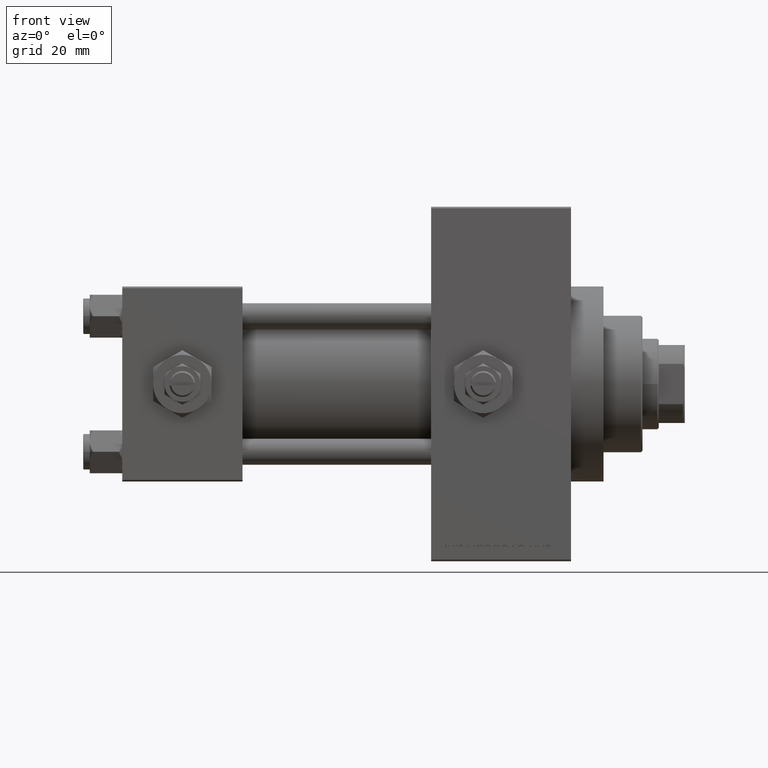
[diagram: clean part render]
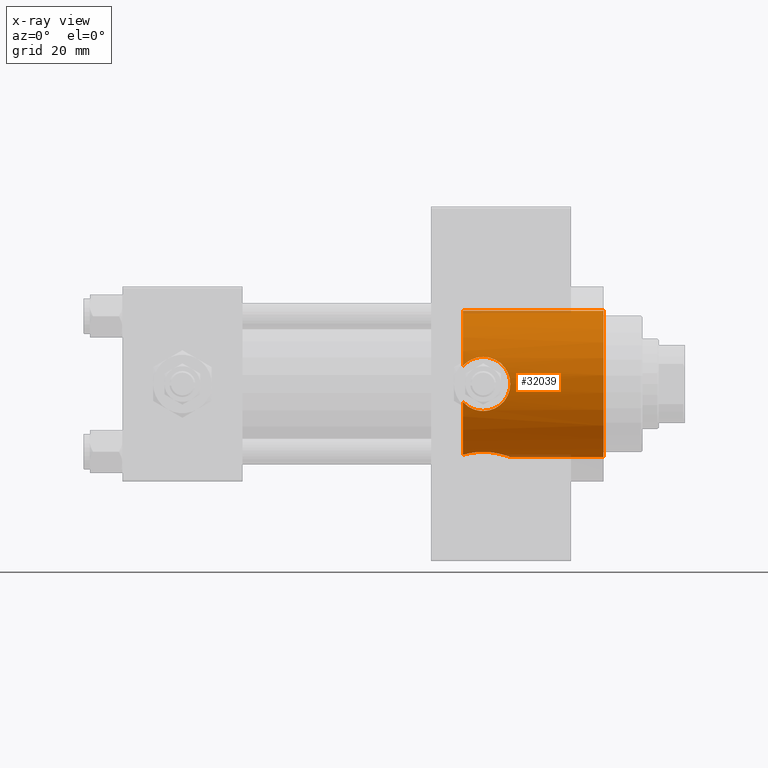
[diagram: x-ray — body ghosted, one internal face saturated and labeled with its STEP entity id]
A machine part, front view, then the same camera in x-ray: the body is ghosted and one INTERNAL B-rep face — a face not visible from any outside direction — is saturated and labeled: STEP entity #32039.
In plain terms, the highlighted cylindrical surface (partial cylindrical patch) has radius 22.5 mm, axis along (1, 0, 0).
Its self-contained STEP definition (entity closure, byte-faithful):
#111 = EDGE_CURVE ( 'NONE', #18398, #23371, #21580, .T. ) ;
#209 = EDGE_LOOP ( 'NONE', ( #24564, #38451, #2272, #45856, #39752, #19119, #42734, #12358, #44548 ) ) ;
#398 = CARTESIAN_POINT ( 'NONE',  ( 111.0000000000000000, -20.90122245228733533, 8.329999999999998295 ) ) ;
#600 = CARTESIAN_POINT ( 'NONE',  ( 116.7709310325000160, -6.021442665975470732, -21.68155238348414926 ) ) ;
#646 = CARTESIAN_POINT ( 'NONE',  ( 118.4672601230096518, -22.19473539390110872, 3.701775444982230212 ) ) ;
#724 = CARTESIAN_POINT ( 'NONE',  ( 148.0000000000000284, 0.000000000000000000, -22.50000000000000355 ) ) ;
#850 = CARTESIAN_POINT ( 'NONE',  ( 114.7487363894115333, -7.487015359358448308, -21.22021487626641090 ) ) ;
#892 = CARTESIAN_POINT ( 'NONE',  ( 115.4162946174782576, -21.36157403235598906, -7.068107254197743217 ) ) ;
#1366 = CARTESIAN_POINT ( 'NONE',  ( 108.6551550182247894, -21.03047559937812849, 7.998696374284292254 ) ) ;
#1617 = CARTESIAN_POINT ( 'NONE',  ( 106.2697604933278797, -21.42856317882727168, 6.862982220796683741 ) ) ;
#1655 = AXIS2_PLACEMENT_3D ( 'NONE', #32663, #6255, #48633 ) ;
#1827 = CARTESIAN_POINT ( 'NONE',  ( 106.2981393575764457, -6.888851288155064978, -21.42070446004186479 ) ) ;
#2272 = ORIENTED_EDGE ( 'NONE', *, *, #14583, .T. ) ;
#2426 = DIRECTION ( 'NONE',  ( 1.000000000000000000, -0.000000000000000000, -0.000000000000000000 ) ) ;
#2540 = CARTESIAN_POINT ( 'NONE',  ( 104.7400000000000233, 2.755455298081545172E-15, 22.50000000000000355 ) ) ;
#3236 = CARTESIAN_POINT ( 'NONE',  ( 118.7930968072331268, -22.30658703498862039, 2.954723655153349782 ) ) ;
#3490 = CARTESIAN_POINT ( 'NONE',  ( 106.5072799748208894, -21.37716939153678908, -7.020813959009431393 ) ) ;
#3725 = CARTESIAN_POINT ( 'NONE',  ( 109.5159917530595663, -20.95182994654723174, -8.202162177390789566 ) ) ;
#4142 = CARTESIAN_POINT ( 'NONE',  ( 116.0823739737877105, -21.50581369923292741, 6.621894569807064812 ) ) ;
#4337 = CARTESIAN_POINT ( 'NONE',  ( 118.0799258618782517, -4.408873422199381054, -22.06660649451128720 ) ) ;
#4376 = CARTESIAN_POINT ( 'NONE',  ( 112.0945140872407819, -20.92807357394550749, -8.262359610693520651 ) ) ;
#4456 = CARTESIAN_POINT ( 'NONE',  ( 104.7400000000000233, -21.81854028114621258, -5.495570943951164189 ) ) ;
#4662 = VERTEX_POINT ( 'NONE', #724 ) ;
#4873 = CARTESIAN_POINT ( 'NONE',  ( 119.1137670994563535, -22.42078891501157756, 1.905695455502133262 ) ) ;
#4896 = DIRECTION ( 'NONE',  ( 1.000000000000000000, 0.000000000000000000, 0.000000000000000000 ) ) ;
#4950 = CIRCLE ( 'NONE', #20852, 22.50000000000000355 ) ;
#5108 = CARTESIAN_POINT ( 'NONE',  ( 111.0000000000000000, -20.90122245228733533, 8.329999999999998295 ) ) ;
#5280 = VERTEX_POINT ( 'NONE', #10838 ) ;
#5340 = AXIS2_PLACEMENT_3D ( 'NONE', #19403, #26380, #45073 ) ;
#5640 = CARTESIAN_POINT ( 'NONE',  ( 111.0000000000000000, -20.90122245228733533, 8.329999999999998295 ) ) ;
#5873 = CARTESIAN_POINT ( 'NONE',  ( 104.7400000000000233, 0.000000000000000000, 0.000000000000000000 ) ) ;
#6255 = DIRECTION ( 'NONE',  ( 1.000000000000000000, 0.000000000000000000, 0.000000000000000000 ) ) ;
#6966 = CARTESIAN_POINT ( 'NONE',  ( 111.2735061075311336, -20.90122245228732467, -8.330000000000001847 ) ) ;
#7188 = FACE_OUTER_BOUND ( 'NONE', #209, .T. ) ;
#7462 = CARTESIAN_POINT ( 'NONE',  ( 106.2630478035203936, -21.43006822195327388, -6.858243691352287286 ) ) ;
#7871 = CARTESIAN_POINT ( 'NONE',  ( 117.6131820133793582, -21.92059695852139711, 5.094123725193837160 ) ) ;
#8075 = CARTESIAN_POINT ( 'NONE',  ( 119.2979863424998257, -0.8432915997222987237, -22.48808859033163188 ) ) ;
#8115 = CARTESIAN_POINT ( 'NONE',  ( 114.7029940750481956, -21.22539488743754177, -7.466680409794069107 ) ) ;
#8310 = CARTESIAN_POINT ( 'NONE',  ( 111.2794540716097629, -8.328024065339553417, -20.90201419577500985 ) ) ;
#8554 = CARTESIAN_POINT ( 'NONE',  ( 109.3814412075936531, -8.182171164303330357, -20.95982457214782357 ) ) ;
#8600 = CARTESIAN_POINT ( 'NONE',  ( 109.8116114218195634, -20.92703331906126962, 8.266041580867375060 ) ) ;
#8604 = CARTESIAN_POINT ( 'NONE',  ( 111.0000000000000000, -20.90122245228733533, -8.329999999999998295 ) ) ;
#8810 = CARTESIAN_POINT ( 'NONE',  ( 108.1560306839754588, -7.840697625789145420, -21.09036237300174932 ) ) ;
#8828 = DIRECTION ( 'NONE',  ( 0.000000000000000000, 0.000000000000000000, -1.000000000000000000 ) ) ;
#9053 = CARTESIAN_POINT ( 'NONE',  ( 107.3830852825355180, -7.515492575748676352, -21.20842510955139204 ) ) ;
#9334 = CARTESIAN_POINT ( 'NONE',  ( 105.1294213925113041, -21.70681062894638558, 5.939160507616724871 ) ) ;
#9835 = EDGE_CURVE ( 'NONE', #23371, #15144, #28577, .T. ) ;
#10705 = CARTESIAN_POINT ( 'NONE',  ( 119.0457606325067417, -22.39619972498787703, 2.174768506008420310 ) ) ;
#10838 = CARTESIAN_POINT ( 'NONE',  ( 104.7400000000000233, -21.81854028114621258, 5.495570943951165965 ) ) ;
#10950 = CARTESIAN_POINT ( 'NONE',  ( 113.1693074062155233, -21.01188926694717907, 8.047222581461220159 ) ) ;
#11154 = VERTEX_POINT ( 'NONE', #34791 ) ;
#11870 = CARTESIAN_POINT ( 'NONE',  ( 118.2086838033527272, -22.10908057845582775, -4.183043294148126812 ) ) ;
#12073 = CARTESIAN_POINT ( 'NONE',  ( 113.1626272159215887, -8.088971939222112439, -20.99812971082578272 ) ) ;
#12115 = CARTESIAN_POINT ( 'NONE',  ( 112.6405020106404749, -20.96042450051702133, 8.180473043859901594 ) ) ;
#12358 = ORIENTED_EDGE ( 'NONE', *, *, #9835, .T. ) ;
#13053 = CARTESIAN_POINT ( 'NONE',  ( 105.9550632640747949, -6.641689111475751695, -21.49922460944221569 ) ) ;
#13617 = EDGE_CURVE ( 'NONE', #35166, #4662, #21369, .T. ) ;
#13769 = EDGE_CURVE ( 'NONE', #15144, #5280, #33106, .T. ) ;
#14468 = CARTESIAN_POINT ( 'NONE',  ( 111.5543731579531226, -20.90679372045599038, 8.316058887085075568 ) ) ;
#14482 = CARTESIAN_POINT ( 'NONE',  ( 105.5599114470477247, -21.59276950757631397, -6.335268510715430956 ) ) ;
#14583 = EDGE_CURVE ( 'NONE', #11154, #4662, #45429, .T. ) ;
#14708 = CARTESIAN_POINT ( 'NONE',  ( 119.3299185521604642, -22.49996984620014828, 0.5500617071476525677 ) ) ;
#15082 = CARTESIAN_POINT ( 'NONE',  ( 116.4597915280917988, -6.305104980880364529, -21.60018777995134798 ) ) ;
#15144 = VERTEX_POINT ( 'NONE', #5640 ) ;
#15208 = CARTESIAN_POINT ( 'NONE',  ( 105.1302032349920808, -21.70658630899341901, -5.940051103694835355 ) ) ;
#15817 = CARTESIAN_POINT ( 'NONE',  ( 115.4717217021022293, -7.077548616542896909, -21.36464718587223643 ) ) ;
#16103 = CARTESIAN_POINT ( 'NONE',  ( 118.0675627765494795, -22.06333762759911821, 4.417272871008651514 ) ) ;
#16301 = CARTESIAN_POINT ( 'NONE',  ( 110.4273342078095936, -8.312974207010734418, -20.90801079915067362 ) ) ;
#16337 = CARTESIAN_POINT ( 'NONE',  ( 104.7400000000000233, -21.81854028114621258, 5.495570943951165965 ) ) ;
#16587 = CARTESIAN_POINT ( 'NONE',  ( 105.5602391363179038, -21.59259860989615021, 6.336013317517886101 ) ) ;
#16800 = CARTESIAN_POINT ( 'NONE',  ( 104.7400000000000233, -5.495570943951159748, -21.81854028114621258 ) ) ;
#17434 = B_SPLINE_CURVE_WITH_KNOTS ( 'NONE', 3,
 ( #31241, #42237, #8075, #38490, #23289, #49220, #27279, #26294, #4337, #19553, #46470, #600, #15082, #15817, #850, #12073, #42476, #8310, #19801, #34989, #16301, #35240, #8554, #31474, #8810, #9053, #42718, #1827, #13053, #46956, #24503, #16800 ),
 .UNSPECIFIED., .F., .F.,
 ( 4, 2, 2, 2, 2, 2, 2, 2, 2, 2, 2, 2, 2, 2, 2, 4 ),
 ( 0.02026158208243475714, 0.02152696880141127464, 0.02279235552038778867, 0.02405774223936430617, 0.02532312895834082367, 0.02658851567731734117, 0.02785390239629385520, 0.03038467583424691795, 0.03291544927219998418, 0.03354814263168822558, 0.03418083599117646698, 0.03544622271015295673, 0.03671160942912944647, 0.03797699614810593621, 0.03924238286708242596, 0.04050776958605891570 ),
 .UNSPECIFIED. ) ;
#17547 = VECTOR ( 'NONE', #2426, 1000.000000000000000 ) ;
#17934 = CARTESIAN_POINT ( 'NONE',  ( 111.0000000000000000, -20.90122245228733533, -8.329999999999998295 ) ) ;
#18398 = VERTEX_POINT ( 'NONE', #4456 ) ;
#18459 = CARTESIAN_POINT ( 'NONE',  ( 117.2760300427460152, -21.81999627700182742, -5.504278278704846983 ) ) ;
#18644 = CARTESIAN_POINT ( 'NONE',  ( 104.7400000000000233, -5.495570943951159748, -21.81854028114621258 ) ) ;
#18707 = CARTESIAN_POINT ( 'NONE',  ( 110.7033935767805133, -20.90122245228733178, -8.329999999999996518 ) ) ;
#19119 = ORIENTED_EDGE ( 'NONE', *, *, #43721, .F. ) ;
#19253 = AXIS2_PLACEMENT_3D ( 'NONE', #5873, #4896, #31793 ) ;
#19361 = CARTESIAN_POINT ( 'NONE',  ( 112.1003494092675652, -20.92838892255957717, 8.261561365096195431 ) ) ;
#19403 = CARTESIAN_POINT ( 'NONE',  ( 104.7400000000000233, 0.000000000000000000, 0.000000000000000000 ) ) ;
#19538 = EDGE_CURVE ( 'NONE', #23299, #5280, #31957, .T. ) ;
#19553 = CARTESIAN_POINT ( 'NONE',  ( 117.6031555897930758, -5.095277354536523973, -21.91828998158686304 ) ) ;
#19595 = CARTESIAN_POINT ( 'NONE',  ( 115.1841016531934514, -21.31459428776615894, -7.208104800680169788 ) ) ;
#19801 = CARTESIAN_POINT ( 'NONE',  ( 111.0645977083230065, -8.332469890991669459, -20.90023832775082724 ) ) ;
#20094 = CARTESIAN_POINT ( 'NONE',  ( 115.1856674176399906, -21.31171765456207368, 7.222201961450713803 ) ) ;
#20693 = CARTESIAN_POINT ( 'NONE',  ( 104.7400000000000233, 2.755455298081545172E-15, 22.50000000000000355 ) ) ;
#20852 = AXIS2_PLACEMENT_3D ( 'NONE', #34756, #43227, #8828 ) ;
#21369 = LINE ( 'NONE', #36572, #17547 ) ;
#21580 = B_SPLINE_CURVE_WITH_KNOTS ( 'NONE', 3,
 ( #37645, #15208, #14482, #7462, #3490, #45608, #33644, #30152, #30393, #3725, #48865, #26660, #18707, #33876 ),
 .UNSPECIFIED., .F., .F.,
 ( 4, 2, 2, 2, 2, 2, 4 ),
 ( 0.000000000000000000, 0.001781041944051188269, 0.002671562916076765815, 0.003562083888102343145, 0.005343125832153458772, 0.006233646804179016586, 0.007124167776204574400 ),
 .UNSPECIFIED. ) ;
#22184 = CARTESIAN_POINT ( 'NONE',  ( 112.3698902534410422, -20.94433763564107309, -8.221198477384685788 ) ) ;
#23084 = CARTESIAN_POINT ( 'NONE',  ( 118.2094365790032384, -22.10932566242729180, 4.181762714824277971 ) ) ;
#23127 = CYLINDRICAL_SURFACE ( 'NONE', #5340, 22.50000000000000355 ) ;
#23289 = CARTESIAN_POINT ( 'NONE',  ( 119.0725935047802437, -2.097577831626823652, -22.40566635581345167 ) ) ;
#23299 = VERTEX_POINT ( 'NONE', #20693 ) ;
#23371 = VERTEX_POINT ( 'NONE', #17934 ) ;
#23814 = CARTESIAN_POINT ( 'NONE',  ( 107.0214695962671385, -21.27506732941325041, 7.324357775039856300 ) ) ;
#23818 = CARTESIAN_POINT ( 'NONE',  ( 119.2744378885957843, -22.47926508187072514, -1.105184406068005609 ) ) ;
#24503 = CARTESIAN_POINT ( 'NONE',  ( 105.0173696454154140, -5.811522461638596759, -21.73895961452385350 ) ) ;
#24548 = CARTESIAN_POINT ( 'NONE',  ( 107.2813383015108002, -21.22781254901980574, 7.459669642192432448 ) ) ;
#24564 = ORIENTED_EDGE ( 'NONE', *, *, #19538, .F. ) ;
#25915 = CARTESIAN_POINT ( 'NONE',  ( 118.5839448562603451, -22.23438073986799068, 3.456375289581934851 ) ) ;
#26294 = CARTESIAN_POINT ( 'NONE',  ( 118.2951098973458244, -4.042988316980868468, -22.13706359110742383 ) ) ;
#26380 = DIRECTION ( 'NONE',  ( 1.000000000000000000, -0.000000000000000000, -0.000000000000000000 ) ) ;
#26660 = CARTESIAN_POINT ( 'NONE',  ( 110.4069016165259427, -20.90753896790107547, -8.314203881045534317 ) ) ;
#26824 = CARTESIAN_POINT ( 'NONE',  ( 117.2706970584281407, -21.81851527395823709, 5.509885407731387907 ) ) ;
#27077 = CARTESIAN_POINT ( 'NONE',  ( 118.4663613352664271, -22.19443338850294012, -3.703568790865935600 ) ) ;
#27279 = CARTESIAN_POINT ( 'NONE',  ( 118.6639140372367791, -3.290714903397363500, -22.26132373405804898 ) ) ;
#27553 = CARTESIAN_POINT ( 'NONE',  ( 117.6186959168767032, -21.92229428948382974, -5.086500752054625707 ) ) ;
#28577 = B_SPLINE_CURVE_WITH_KNOTS ( 'NONE', 3,
 ( #8604, #6966, #33630, #4376, #22184, #48851, #46017, #42277, #8115, #19595, #892, #38292, #46509, #18459, #27553, #42761, #11870, #27077, #35033, #31043, #44866, #23818, #39023, #14708, #46269, #4873, #10705, #37384, #3236, #25915, #646, #23084, #16103, #7871, #26824, #31282, #4142, #20094, #45101, #42024, #35283, #10950, #12115, #19361, #14468, #41115, #398 ),
 .UNSPECIFIED., .F., .F.,
 ( 4, 2, 2, 2, 2, 2, 2, 2, 2, 2, 2, 2, 2, 2, 2, 2, 2, 2, 2, 2, 2, 1, 2, 4 ),
 ( 0.007124167776204574400, 0.007945333151147660963, 0.008766498526090748394, 0.01040882927597692326, 0.01122999465092001242, 0.01205116002586310159, 0.01369349077574931114, 0.01533582152563552070, 0.01615698690057861334, 0.01697815227552170944, 0.01862048302540790512, 0.02026281377529409733, 0.02190514452518028954, 0.02272630990012339258, 0.02354747527506649216, 0.02436864065000959520, 0.02518980602495269477, 0.02683213677483889739, 0.02847446752472510348, 0.03011679827461130610, 0.03093796364955438832, 0.03175912902449747055, 0.03258029439944055278, 0.03340145977438363500 ),
 .UNSPECIFIED. ) ;
#28963 = LINE ( 'NONE', #2540, #42911 ) ;
#30152 = CARTESIAN_POINT ( 'NONE',  ( 108.0838949812959839, -21.09704273054901691, -7.825085139990041405 ) ) ;
#30393 = CARTESIAN_POINT ( 'NONE',  ( 108.6423281438609791, -21.02576769369943932, -8.011595525461764566 ) ) ;
#31043 = CARTESIAN_POINT ( 'NONE',  ( 118.9001442294268855, -22.34355564568058128, -2.697317211183194008 ) ) ;
#31241 = CARTESIAN_POINT ( 'NONE',  ( 119.3300000000000125, -1.030843987897557177E-23, -22.50000000000000355 ) ) ;
#31282 = CARTESIAN_POINT ( 'NONE',  ( 116.5068656785022085, -21.61137517055394852, 6.273349121788477589 ) ) ;
#31474 = CARTESIAN_POINT ( 'NONE',  ( 108.5613052431537540, -7.976241308370980221, -21.03905286955202314 ) ) ;
#31514 = CARTESIAN_POINT ( 'NONE',  ( 110.4005171616786214, -20.90122245228733178, 8.330000000000000071 ) ) ;
#31793 = DIRECTION ( 'NONE',  ( 0.000000000000000000, 0.000000000000000000, -1.000000000000000000 ) ) ;
#31957 = CIRCLE ( 'NONE', #19253, 22.50000000000000355 ) ;
#32014 = CARTESIAN_POINT ( 'NONE',  ( 108.0904099977523032, -21.10090803564297346, 7.811000428585661126 ) ) ;
#32039 = ADVANCED_FACE ( 'NONE', ( #7188 ), #23127, .F. ) ;
#32663 = CARTESIAN_POINT ( 'NONE',  ( 148.0000000000000284, 0.000000000000000000, 0.000000000000000000 ) ) ;
#33106 = B_SPLINE_CURVE_WITH_KNOTS ( 'NONE', 3,
 ( #5108, #31514, #8600, #39754, #1366, #32014, #36021, #24548, #23814, #39500, #1617, #16587, #9334, #16337 ),
 .UNSPECIFIED., .F., .F.,
 ( 4, 2, 2, 2, 2, 2, 4 ),
 ( 0.03340145977438363500, 0.03517803722730241528, 0.03606632595376182970, 0.03695461468022123719, 0.03784290340668064467, 0.03873119213314005910, 0.04050776958605891570 ),
 .UNSPECIFIED. ) ;
#33630 = CARTESIAN_POINT ( 'NONE',  ( 111.5471095774289552, -20.90659301079499954, -8.316562903860804212 ) ) ;
#33644 = CARTESIAN_POINT ( 'NONE',  ( 107.2800545255194322, -21.22802876403585159, -7.459060741738373856 ) ) ;
#33876 = CARTESIAN_POINT ( 'NONE',  ( 111.0000000000000000, -20.90122245228733533, -8.329999999999998295 ) ) ;
#34756 = CARTESIAN_POINT ( 'NONE',  ( 104.7400000000000233, 0.000000000000000000, 0.000000000000000000 ) ) ;
#34791 = CARTESIAN_POINT ( 'NONE',  ( 148.0000000000000284, 2.755455298081545172E-15, 22.50000000000000355 ) ) ;
#34989 = CARTESIAN_POINT ( 'NONE',  ( 110.6388607599010214, -8.324890737869420576, -20.90325837862613412 ) ) ;
#35033 = CARTESIAN_POINT ( 'NONE',  ( 118.5849097978501305, -22.23470781577740851, -3.454383896492970063 ) ) ;
#35166 = VERTEX_POINT ( 'NONE', #35347 ) ;
#35240 = CARTESIAN_POINT ( 'NONE',  ( 109.7966742200955963, -8.253438808842114227, -20.93161653585327286 ) ) ;
#35283 = CARTESIAN_POINT ( 'NONE',  ( 113.6924408181926651, -21.07232387524590322, 7.887613602273566116 ) ) ;
#35347 = CARTESIAN_POINT ( 'NONE',  ( 119.3300000000000125, -1.030843987897557177E-23, -22.50000000000000355 ) ) ;
#36021 = CARTESIAN_POINT ( 'NONE',  ( 107.8158094925858137, -21.14073437645954456, 7.702989472338081178 ) ) ;
#36111 = VERTEX_POINT ( 'NONE', #18644 ) ;
#36572 = CARTESIAN_POINT ( 'NONE',  ( 104.7400000000000233, 0.000000000000000000, -22.50000000000000355 ) ) ;
#37384 = CARTESIAN_POINT ( 'NONE',  ( 118.8855645018619782, -22.33915006169612028, 2.698472660097863685 ) ) ;
#37645 = CARTESIAN_POINT ( 'NONE',  ( 104.7400000000000233, -21.81854028114621258, -5.495570943951164189 ) ) ;
#38292 = CARTESIAN_POINT ( 'NONE',  ( 116.0889559316784556, -21.50736897996591068, -6.616873940636490481 ) ) ;
#38451 = ORIENTED_EDGE ( 'NONE', *, *, #39388, .T. ) ;
#38490 = CARTESIAN_POINT ( 'NONE',  ( 119.1699291769579077, -1.679278209817683276, -22.44115179447786446 ) ) ;
#39023 = CARTESIAN_POINT ( 'NONE',  ( 119.3300812647949840, -22.50003008603270160, -0.5475920828583153988 ) ) ;
#39388 = EDGE_CURVE ( 'NONE', #23299, #11154, #28963, .T. ) ;
#39500 = CARTESIAN_POINT ( 'NONE',  ( 106.5161894936350677, -21.37532087138410475, 7.026404794290244560 ) ) ;
#39752 = ORIENTED_EDGE ( 'NONE', *, *, #42048, .T. ) ;
#39754 = CARTESIAN_POINT ( 'NONE',  ( 108.9433953409139235, -21.00018004101065117, 8.077560274214617309 ) ) ;
#41115 = CARTESIAN_POINT ( 'NONE',  ( 111.2770915216184164, -20.90122245228733533, 8.329999999999998295 ) ) ;
#42024 = CARTESIAN_POINT ( 'NONE',  ( 113.9526680260204472, -21.10727557153276024, 7.793937181550308679 ) ) ;
#42048 = EDGE_CURVE ( 'NONE', #35166, #36111, #17434, .T. ) ;
#42237 = CARTESIAN_POINT ( 'NONE',  ( 119.3300000000000409, -0.4228661663087318612, -22.50000000000001421 ) ) ;
#42277 = CARTESIAN_POINT ( 'NONE',  ( 114.4549169580586323, -21.18338444856564351, -7.584632363023119161 ) ) ;
#42476 = CARTESIAN_POINT ( 'NONE',  ( 112.3403738839046895, -8.265299052519043954, -20.92696222447262500 ) ) ;
#42718 = CARTESIAN_POINT ( 'NONE',  ( 107.0116854358692962, -7.325101535721546320, -21.27547271216653968 ) ) ;
#42734 = ORIENTED_EDGE ( 'NONE', *, *, #111, .T. ) ;
#42761 = CARTESIAN_POINT ( 'NONE',  ( 118.0690759461940758, -22.06383064093186874, -4.414719317479095295 ) ) ;
#42911 = VECTOR ( 'NONE', #44159, 1000.000000000000000 ) ;
#43227 = DIRECTION ( 'NONE',  ( 1.000000000000000000, 0.000000000000000000, 0.000000000000000000 ) ) ;
#43721 = EDGE_CURVE ( 'NONE', #18398, #36111, #4950, .T. ) ;
#44159 = DIRECTION ( 'NONE',  ( 1.000000000000000000, -0.000000000000000000, -0.000000000000000000 ) ) ;
#44548 = ORIENTED_EDGE ( 'NONE', *, *, #13769, .T. ) ;
#44866 = CARTESIAN_POINT ( 'NONE',  ( 119.0590295962803822, -22.40087039118136403, -2.177107464027083328 ) ) ;
#45073 = DIRECTION ( 'NONE',  ( 0.000000000000000000, 0.000000000000000000, -1.000000000000000000 ) ) ;
#45101 = CARTESIAN_POINT ( 'NONE',  ( 114.7100157079871394, -21.22206990084785971, 7.478228700289339059 ) ) ;
#45429 = CIRCLE ( 'NONE', #1655, 22.50000000000000355 ) ;
#45608 = CARTESIAN_POINT ( 'NONE',  ( 107.0164830714163600, -21.27597812299412183, -7.321745335051924819 ) ) ;
#45856 = ORIENTED_EDGE ( 'NONE', *, *, #13617, .F. ) ;
#46017 = CARTESIAN_POINT ( 'NONE',  ( 113.7005757782755637, -21.06910324548280400, -7.898897868879305229 ) ) ;
#46269 = CARTESIAN_POINT ( 'NONE',  ( 119.2761281519646985, -22.47988508193238744, 1.094792065016548133 ) ) ;
#46470 = CARTESIAN_POINT ( 'NONE',  ( 117.3413009043436830, -5.417501232309193782, -21.84028767977485330 ) ) ;
#46509 = CARTESIAN_POINT ( 'NONE',  ( 116.5057538670176598, -21.61103907902401389, -6.274735597831406331 ) ) ;
#46956 = CARTESIAN_POINT ( 'NONE',  ( 105.3158746668531620, -6.103616970294096333, -21.65812902678066720 ) ) ;
#48633 = DIRECTION ( 'NONE',  ( 0.000000000000000000, 0.000000000000000000, -1.000000000000000000 ) ) ;
#48851 = CARTESIAN_POINT ( 'NONE',  ( 113.1797018052745472, -21.00767761359999497, -8.058598816431000955 ) ) ;
#48865 = CARTESIAN_POINT ( 'NONE',  ( 109.8141494303989845, -20.93274137745090968, -8.250546060391949155 ) ) ;
#49220 = CARTESIAN_POINT ( 'NONE',  ( 118.8195974207912968, -2.901808889280239612, -22.31576175661178496 ) ) ;